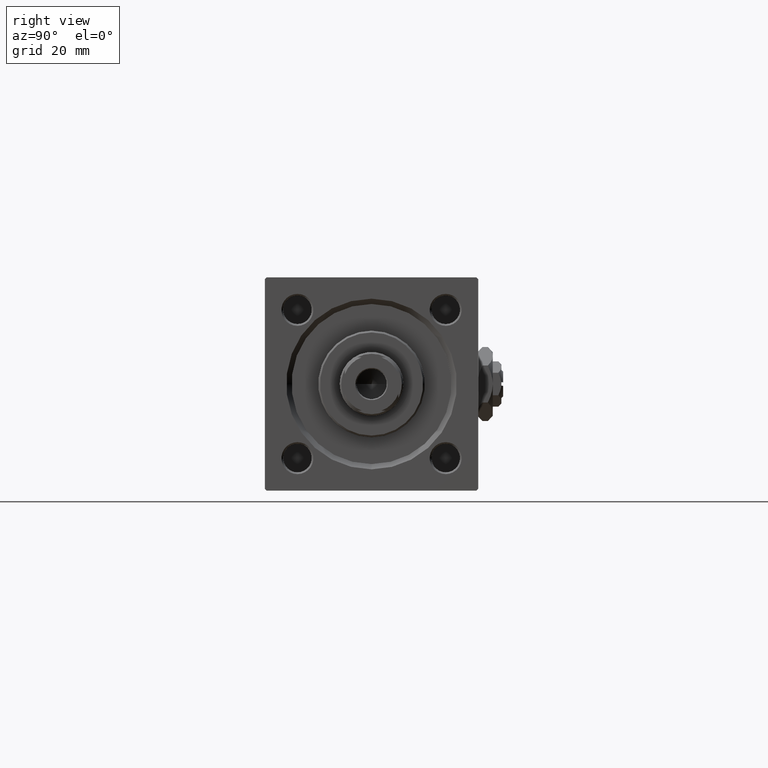
[diagram: clean part render]
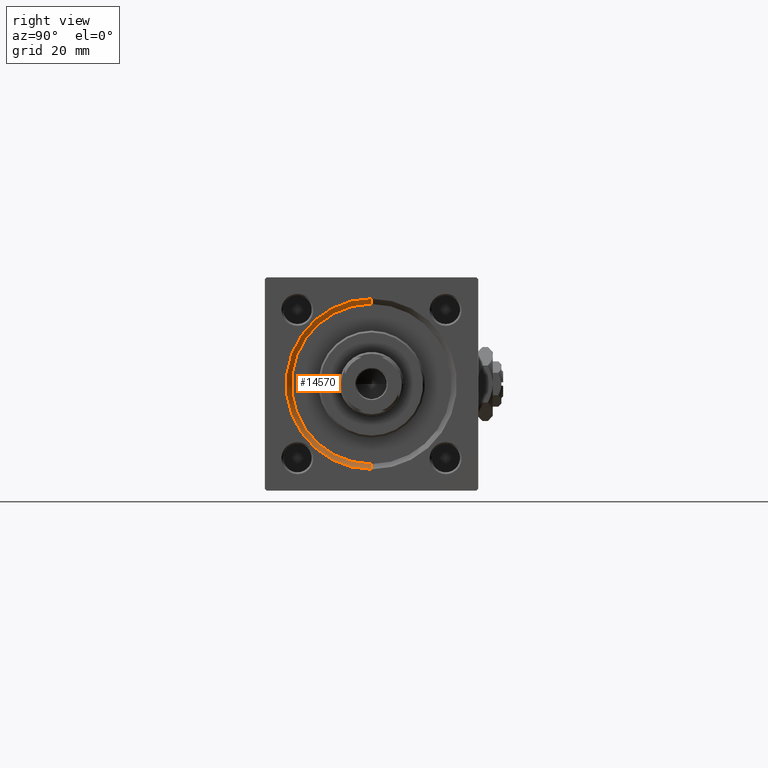
[diagram: same view with one face highlighted and labeled with its STEP entity id]
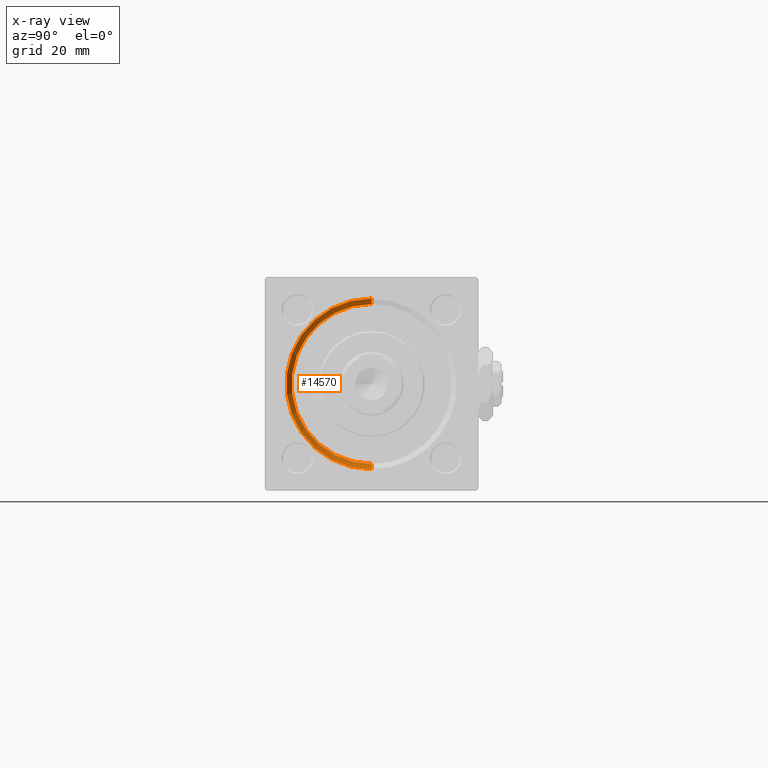
[diagram: x-ray of the same camera — body ghosted, the highlighted face saturated]
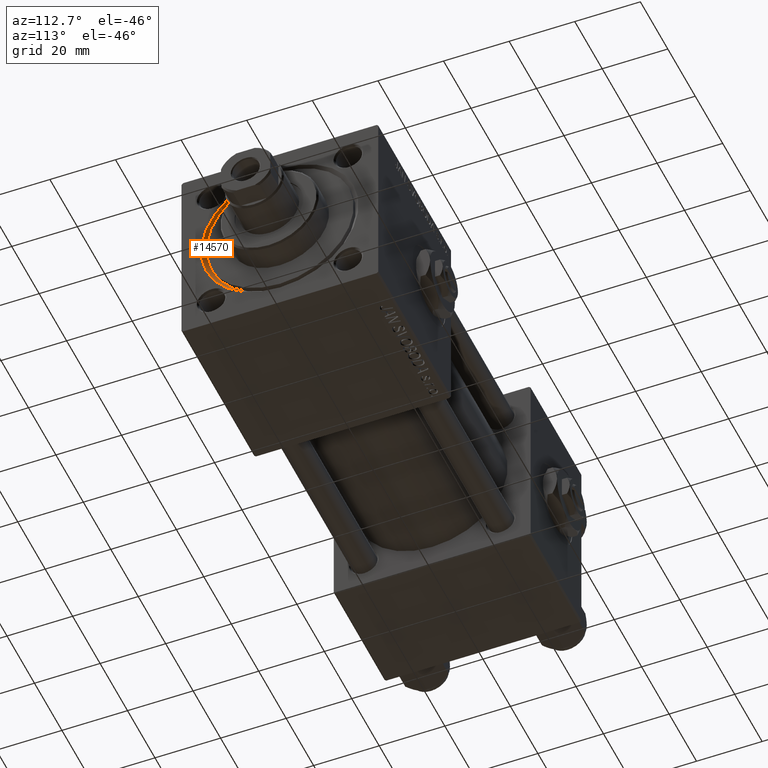
[diagram: same view with one face highlighted and labeled with its STEP entity id]
A machine part, right view. The second image highlights one B-rep face of the part: STEP entity #14570.
The next image is the same camera in x-ray: the body ghosted, the highlighted face saturated — about 0% of this face is hidden behind the body in this view.
A second angle (auxiliary view) of the same face is appended — the face is thin or edge-on in the first view.
In plain terms, the highlighted conical surface has half-angle 45 deg.
Its self-contained STEP definition (entity closure, byte-faithful):
#457 = LINE ( 'NONE', #39023, #44575 ) ;
#505 = DIRECTION ( 'NONE',  ( 0.000000000000000000, 0.000000000000000000, 1.000000000000000000 ) ) ;
#725 = VECTOR ( 'NONE', #28681, 1000.000000000000000 ) ;
#2888 = VERTEX_POINT ( 'NONE', #3535 ) ;
#3037 = CARTESIAN_POINT ( 'NONE',  ( 148.0000000000000000, 0.000000000000000000, -24.00000000000003908 ) ) ;
#3535 = CARTESIAN_POINT ( 'NONE',  ( 146.4999999999999432, 0.000000000000000000, -22.50000000000000355 ) ) ;
#5077 = CARTESIAN_POINT ( 'NONE',  ( 146.4999999999999432, 2.755455298081545172E-15, 22.50000000000000355 ) ) ;
#7024 = DIRECTION ( 'NONE',  ( -1.000000000000000000, 0.000000000000000000, -0.000000000000000000 ) ) ;
#7531 = CARTESIAN_POINT ( 'NONE',  ( 146.4999999999999432, 2.755455298081545172E-15, 22.50000000000000355 ) ) ;
#8848 = CARTESIAN_POINT ( 'NONE',  ( 148.0000000000000000, 2.939152317953652628E-15, 24.00000000000003908 ) ) ;
#10399 = EDGE_CURVE ( 'NONE', #31594, #46834, #20923, .T. ) ;
#11498 = CONICAL_SURFACE ( 'NONE', #41051, 22.50000000000000355, 0.7853981633974415066 ) ;
#14570 = ADVANCED_FACE ( 'NONE', ( #30667 ), #11498, .F. ) ;
#15312 = CARTESIAN_POINT ( 'NONE',  ( 146.4999999999999432, 0.000000000000000000, 0.000000000000000000 ) ) ;
#16239 = LINE ( 'NONE', #7531, #725 ) ;
#17979 = ORIENTED_EDGE ( 'NONE', *, *, #10399, .F. ) ;
#18759 = DIRECTION ( 'NONE',  ( 0.000000000000000000, 0.000000000000000000, -1.000000000000000000 ) ) ;
#20923 = CIRCLE ( 'NONE', #33596, 24.00000000000003908 ) ;
#21319 = VERTEX_POINT ( 'NONE', #5077 ) ;
#22475 = DIRECTION ( 'NONE',  ( 1.000000000000000000, 0.000000000000000000, 0.000000000000000000 ) ) ;
#24712 = ORIENTED_EDGE ( 'NONE', *, *, #50851, .T. ) ;
#26147 = CARTESIAN_POINT ( 'NONE',  ( 148.0000000000000000, 0.000000000000000000, 0.000000000000000000 ) ) ;
#27105 = ORIENTED_EDGE ( 'NONE', *, *, #51204, .F. ) ;
#28681 = DIRECTION ( 'NONE',  ( 0.7071067811865524577, 8.659560562354874926E-17, 0.7071067811865426878 ) ) ;
#28684 = EDGE_LOOP ( 'NONE', ( #27105, #24712, #17979, #43619 ) ) ;
#30667 = FACE_OUTER_BOUND ( 'NONE', #28684, .T. ) ;
#31594 = VERTEX_POINT ( 'NONE', #3037 ) ;
#33596 = AXIS2_PLACEMENT_3D ( 'NONE', #26147, #7024, #49934 ) ;
#36725 = DIRECTION ( 'NONE',  ( 1.000000000000000000, 0.000000000000000000, 0.000000000000000000 ) ) ;
#39023 = CARTESIAN_POINT ( 'NONE',  ( 146.4999999999999432, 0.000000000000000000, -22.50000000000000355 ) ) ;
#41051 = AXIS2_PLACEMENT_3D ( 'NONE', #15312, #22475, #18759 ) ;
#41295 = CIRCLE ( 'NONE', #51390, 22.50000000000000355 ) ;
#43619 = ORIENTED_EDGE ( 'NONE', *, *, #45317, .F. ) ;
#44145 = CARTESIAN_POINT ( 'NONE',  ( 146.4999999999999432, 0.000000000000000000, 0.000000000000000000 ) ) ;
#44575 = VECTOR ( 'NONE', #51172, 1000.000000000000000 ) ;
#45317 = EDGE_CURVE ( 'NONE', #2888, #31594, #457, .T. ) ;
#46834 = VERTEX_POINT ( 'NONE', #8848 ) ;
#49934 = DIRECTION ( 'NONE',  ( 0.000000000000000000, 0.000000000000000000, 1.000000000000000000 ) ) ;
#50851 = EDGE_CURVE ( 'NONE', #21319, #46834, #16239, .T. ) ;
#51172 = DIRECTION ( 'NONE',  ( 0.7071067811865524577, 0.000000000000000000, -0.7071067811865426878 ) ) ;
#51204 = EDGE_CURVE ( 'NONE', #21319, #2888, #41295, .T. ) ;
#51390 = AXIS2_PLACEMENT_3D ( 'NONE', #44145, #36725, #505 ) ;